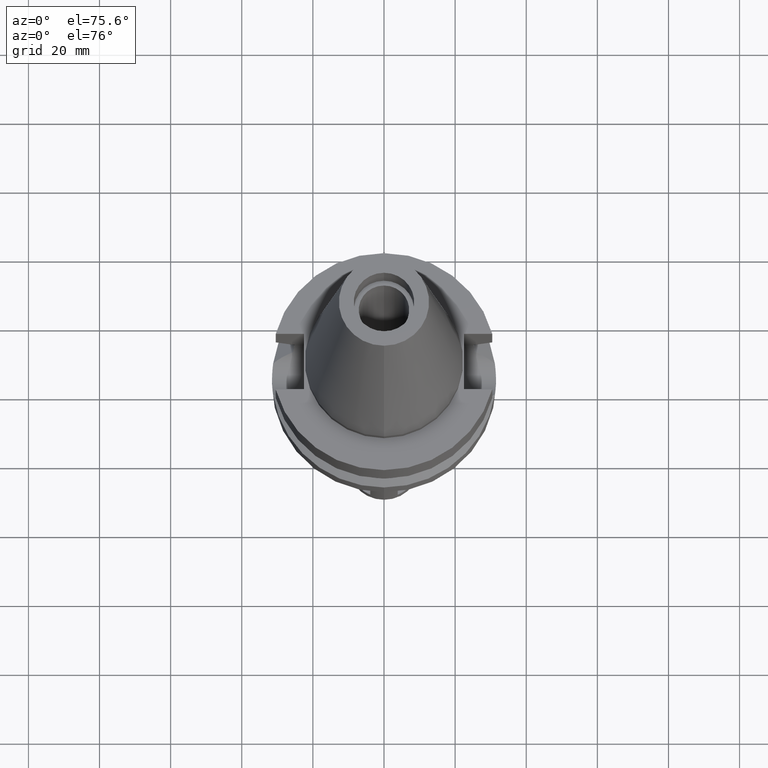
[diagram: clean part render]
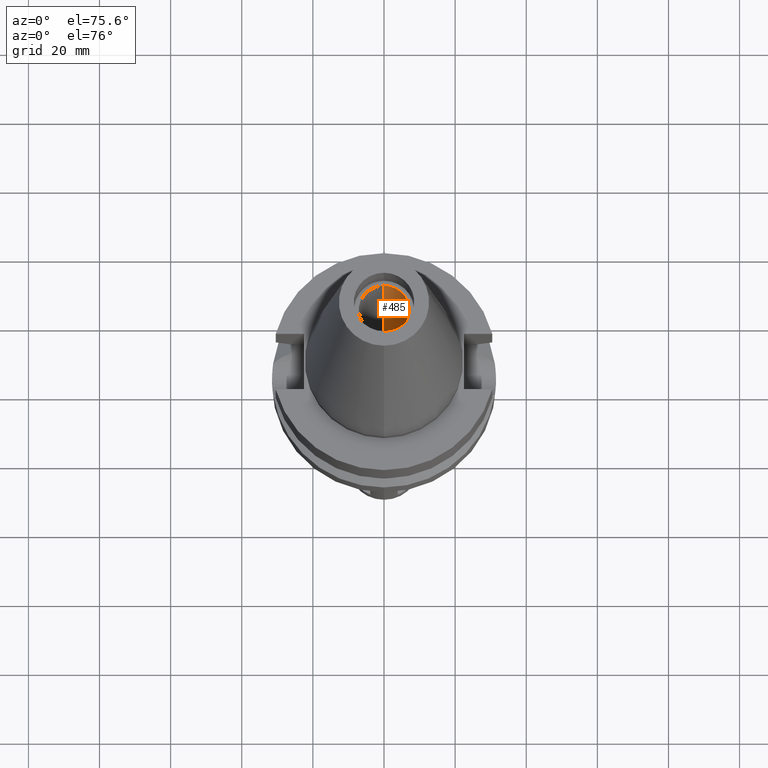
[diagram: same view with one face highlighted and labeled with its STEP entity id]
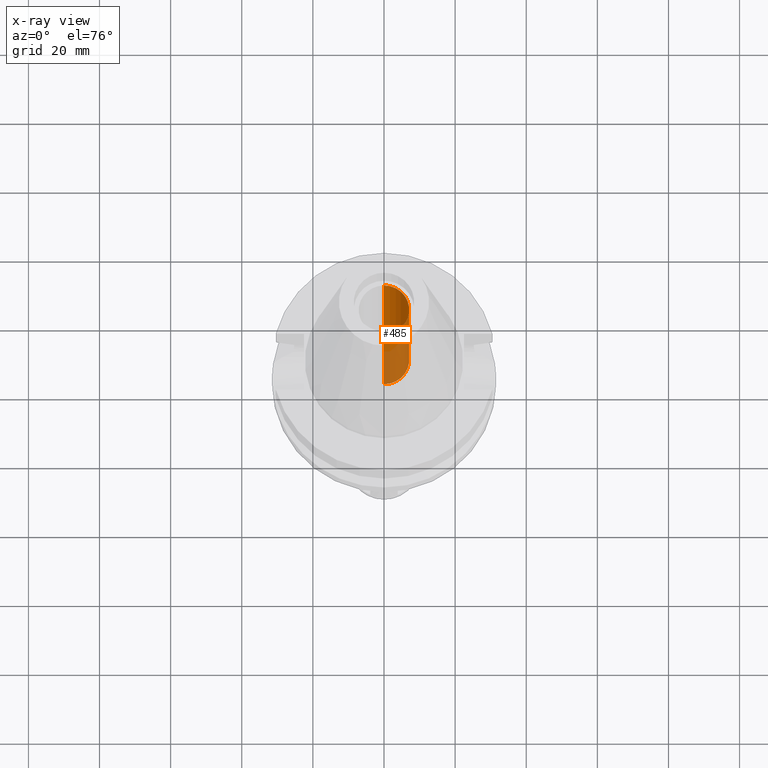
[diagram: x-ray of the same camera — body ghosted, the highlighted face saturated]
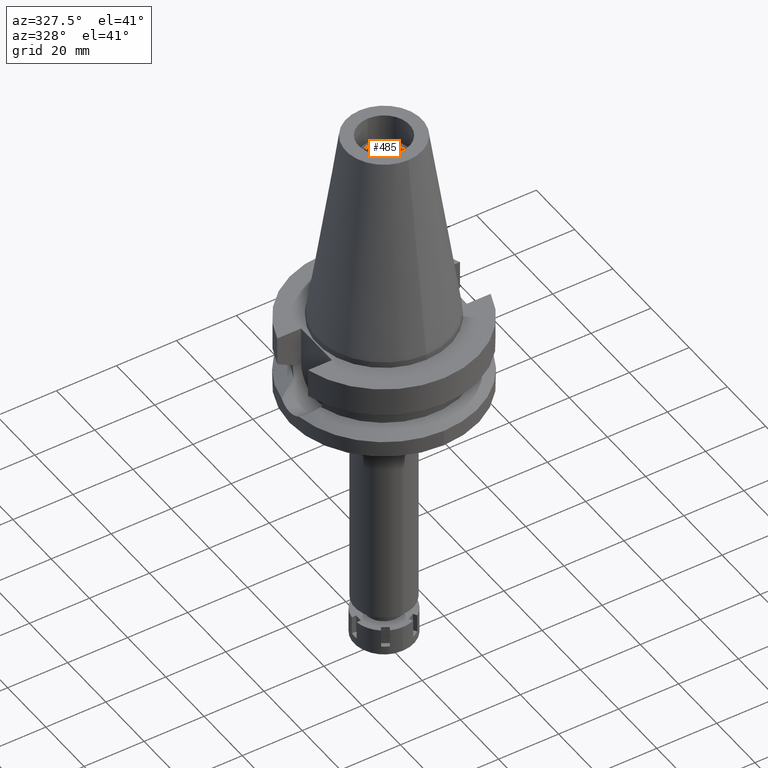
[diagram: same view with one face highlighted and labeled with its STEP entity id]
A machine part, auxiliary view. The second image highlights one B-rep face of the part: STEP entity #485.
The next image is the same camera in x-ray: the body ghosted, the highlighted face saturated — about 41% of this face is hidden behind the body in this view.
A second angle (auxiliary view) of the same face is appended — the face is thin or edge-on in the first view.
In plain terms, the highlighted cylindrical surface (edge-blend (fillet) strip) has radius 7.1 mm, axis along (0, 0, -1).
Its self-contained STEP definition (entity closure, byte-faithful):
#17 = VERTEX_POINT ( 'NONE', #2555 ) ;
#278 = LINE ( 'NONE', #1145, #3154 ) ;
#314 = CARTESIAN_POINT ( 'NONE',  ( 0.0000000000000000000, 2.136028947072999920E-14, 74.42000000000000171 ) ) ;
#377 = DIRECTION ( 'NONE',  ( 0.0000000000000000000, 0.0000000000000000000, 1.000000000000000000 ) ) ;
#421 = ORIENTED_EDGE ( 'NONE', *, *, #2826, .F. ) ;
#432 = EDGE_LOOP ( 'NONE', ( #421, #1127, #3586, #3576 ) ) ;
#451 = CARTESIAN_POINT ( 'NONE',  ( 0.0000000000000000000, 7.100000000000000533, -5.684341886080998387E-14 ) ) ;
#485 = ADVANCED_FACE ( 'NONE', ( #3464 ), #2908, .F. ) ;
#811 = CARTESIAN_POINT ( 'NONE',  ( 0.0000000000000000000, -7.100000000000000533, -5.684341886080998387E-14 ) ) ;
#933 = DIRECTION ( 'NONE',  ( 0.0000000000000000000, 0.0000000000000000000, 1.000000000000000000 ) ) ;
#948 = AXIS2_PLACEMENT_3D ( 'NONE', #3436, #933, #2063 ) ;
#1056 = VERTEX_POINT ( 'NONE', #451 ) ;
#1118 = CIRCLE ( 'NONE', #948, 7.100000000000000533 ) ;
#1127 = ORIENTED_EDGE ( 'NONE', *, *, #2737, .T. ) ;
#1145 = CARTESIAN_POINT ( 'NONE',  ( 0.0000000000000000000, 7.100000000000000533, -5.684341886080998387E-14 ) ) ;
#1230 = DIRECTION ( 'NONE',  ( 0.0000000000000000000, -1.000000000000000000, 0.0000000000000000000 ) ) ;
#1236 = DIRECTION ( 'NONE',  ( 0.0000000000000000000, 0.0000000000000000000, -1.000000000000000000 ) ) ;
#1303 = CARTESIAN_POINT ( 'NONE',  ( 0.0000000000000000000, -7.100000000000000533, 56.39999999999999858 ) ) ;
#1307 = VECTOR ( 'NONE', #377, 1000.000000000000000 ) ;
#1370 = EDGE_CURVE ( 'NONE', #1056, #17, #278, .T. ) ;
#1425 = DIRECTION ( 'NONE',  ( 0.0000000000000000000, 0.0000000000000000000, 1.000000000000000000 ) ) ;
#1811 = AXIS2_PLACEMENT_3D ( 'NONE', #314, #1236, #3388 ) ;
#2063 = DIRECTION ( 'NONE',  ( 0.0000000000000000000, -1.000000000000000000, 0.0000000000000000000 ) ) ;
#2114 = LINE ( 'NONE', #2390, #1307 ) ;
#2231 = VERTEX_POINT ( 'NONE', #811 ) ;
#2243 = CIRCLE ( 'NONE', #2709, 7.100000000000000533 ) ;
#2390 = CARTESIAN_POINT ( 'NONE',  ( 0.0000000000000000000, -7.100000000000000533, -5.684341886080998387E-14 ) ) ;
#2555 = CARTESIAN_POINT ( 'NONE',  ( 0.0000000000000000000, 7.100000000000000533, 56.39999999999999858 ) ) ;
#2709 = AXIS2_PLACEMENT_3D ( 'NONE', #3457, #2939, #1230 ) ;
#2737 = EDGE_CURVE ( 'NONE', #2231, #3514, #2114, .T. ) ;
#2777 = EDGE_CURVE ( 'NONE', #3514, #17, #2243, .T. ) ;
#2826 = EDGE_CURVE ( 'NONE', #2231, #1056, #1118, .T. ) ;
#2908 = CYLINDRICAL_SURFACE ( 'NONE', #1811, 7.100000000000000533 ) ;
#2939 = DIRECTION ( 'NONE',  ( 0.0000000000000000000, 0.0000000000000000000, 1.000000000000000000 ) ) ;
#3154 = VECTOR ( 'NONE', #1425, 1000.000000000000000 ) ;
#3388 = DIRECTION ( 'NONE',  ( 0.0000000000000000000, -1.000000000000000000, 0.0000000000000000000 ) ) ;
#3436 = CARTESIAN_POINT ( 'NONE',  ( 0.0000000000000000000, 2.136028947072999920E-14, -5.684341886080998387E-14 ) ) ;
#3457 = CARTESIAN_POINT ( 'NONE',  ( 0.0000000000000000000, 2.136028947072999920E-14, 56.39999999999999858 ) ) ;
#3464 = FACE_OUTER_BOUND ( 'NONE', #432, .T. ) ;
#3514 = VERTEX_POINT ( 'NONE', #1303 ) ;
#3576 = ORIENTED_EDGE ( 'NONE', *, *, #1370, .F. ) ;
#3586 = ORIENTED_EDGE ( 'NONE', *, *, #2777, .T. ) ;